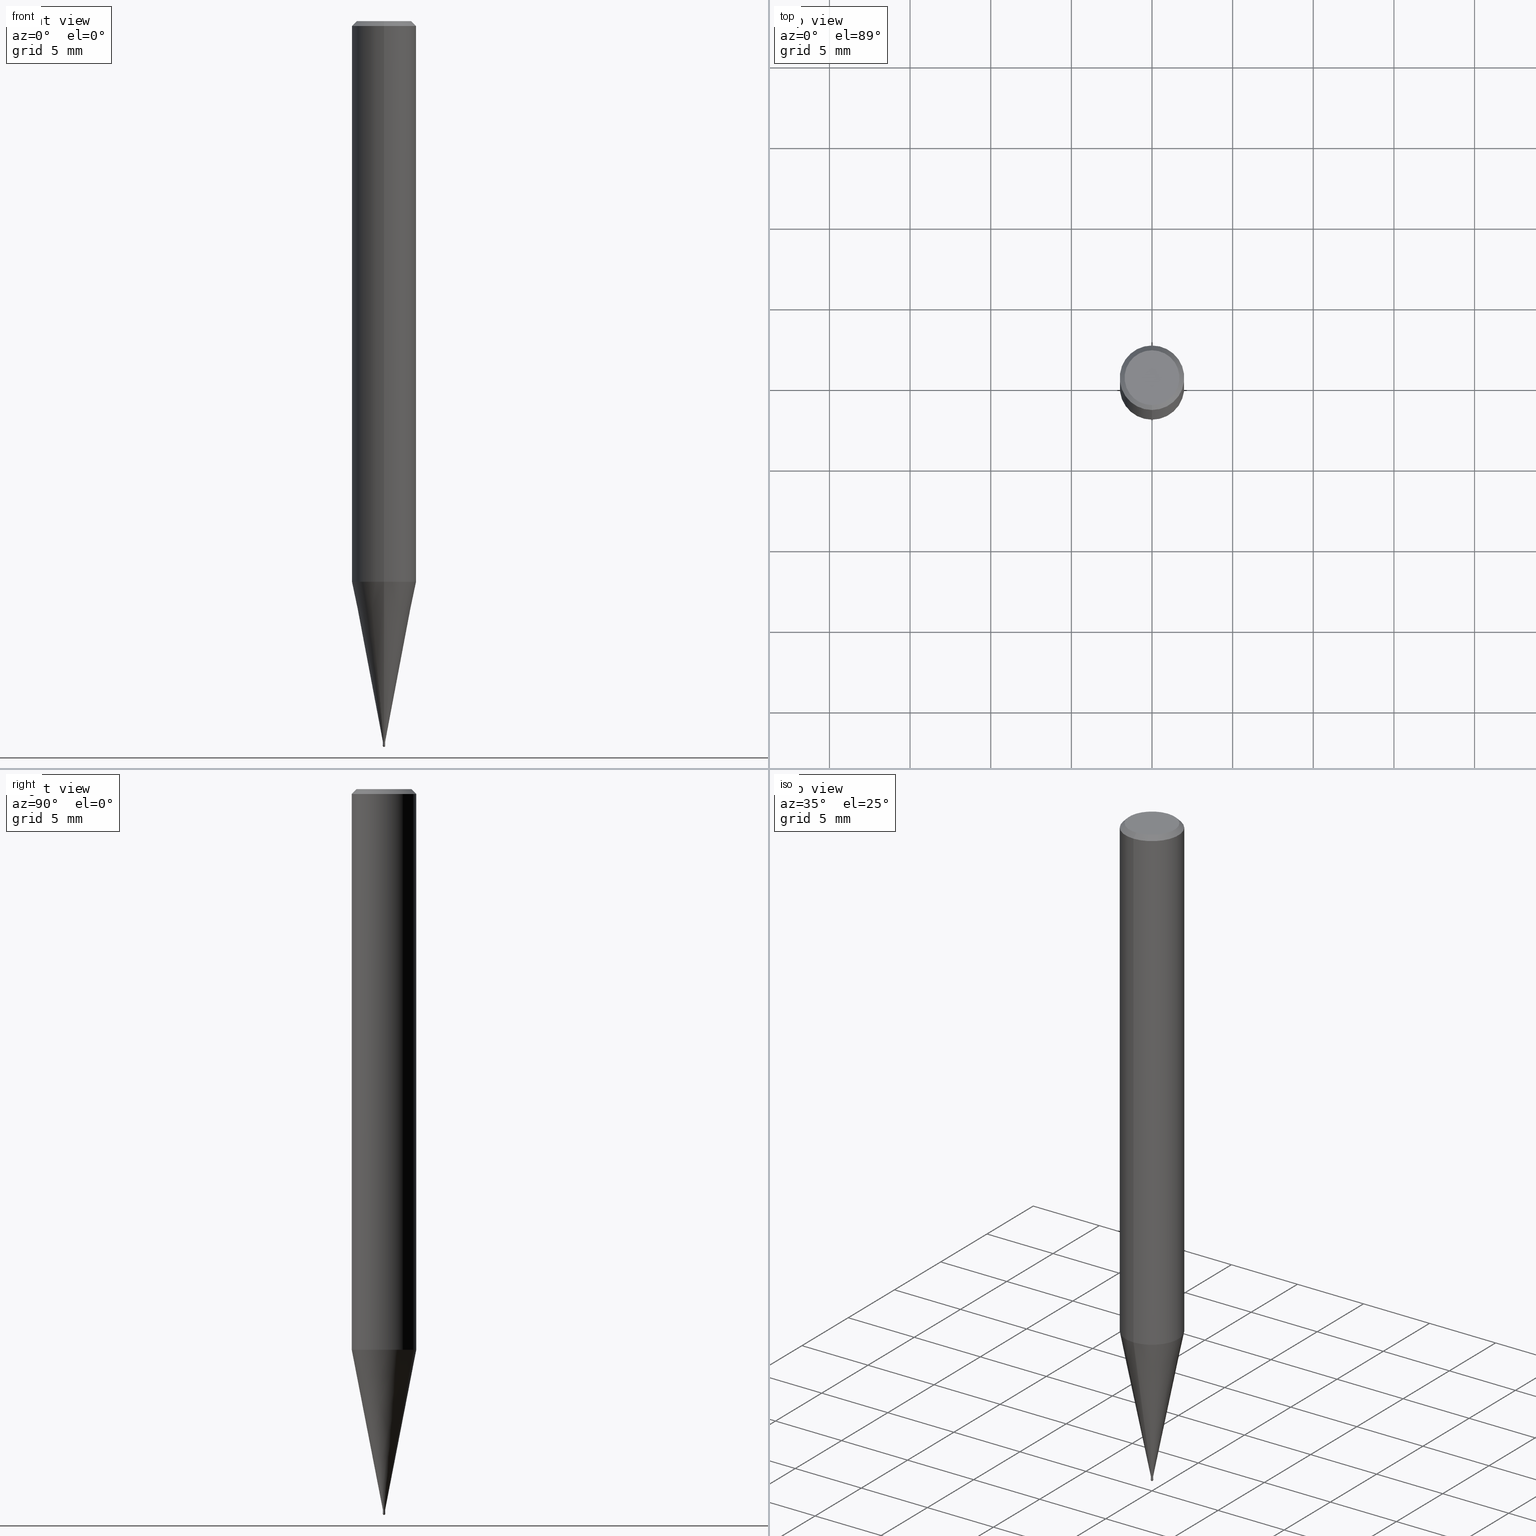
[diagram: canonical four-view strip — front | top / right | iso, engineering-drawing reading convention]
A machine part, canonical four-view strip (front | top / right | iso — engineering-drawing reading convention). The complete STEP part file that produces these views, byte-faithful:
ISO-10303-21;
HEADER;
FILE_DESCRIPTION(('no description'),'unknown implementation level');
FILE_NAME('HSLB20015-003-Huellk.stp','  ',('CIMSOURCE GmbH'),('CADClick - KiM GmbH - www.kimweb.de'),'unknown preprocess','ACIS','unknown authorization');
FILE_SCHEMA(('automotive_design'));
ENDSEC;
DATA;
#1=MECHANICAL_DESIGN_GEOMETRIC_PRESENTATION_REPRESENTATION(' ',(#14,#15,#16,#17,#18,#19,#20,#21,#22,#23,#24,#25,#26,#27,#28,#29,#30,#31,#32,#33,#34,#35,#36,#37,#38,#39,#40,#41,#42,#43,#44,#45,#46,#47,#48,#49,#50,#51,#52,#53,#54,#55,#56,#57,#58,#59,#60,#61,#62,#63,#64,#65,#66,#67,#68,#69,#70,#71,#72,#73,#74),#10);
#2=PRODUCT_DEFINITION_CONTEXT('',#75,'design');
#3=APPLICATION_PROTOCOL_DEFINITION('INTERNATIONAL STANDARD','automotive_design',1994,#75);
#4=PRODUCT_CATEGORY_RELATIONSHIP('NONE','NONE',#76,#77);
#5=SHAPE_DEFINITION_REPRESENTATION(#78,#79);
#6=PRODUCT_DEFINITION_CONTEXT('',#80,'design');
#7=APPLICATION_PROTOCOL_DEFINITION('INTERNATIONAL STANDARD','automotive_design',1994,#80);
#8=PRODUCT_CATEGORY_RELATIONSHIP('NONE','NONE',#81,#82);
#9=SHAPE_DEFINITION_REPRESENTATION(#83,#84);
#10= (GEOMETRIC_REPRESENTATION_CONTEXT(3)GLOBAL_UNCERTAINTY_ASSIGNED_CONTEXT((#87))GLOBAL_UNIT_ASSIGNED_CONTEXT((#89,#90,#91))REPRESENTATION_CONTEXT('NONE','WORKSPACE'));
#14=STYLED_ITEM('',(#93),#94);
#15=STYLED_ITEM('',(#95),#96);
#16=STYLED_ITEM('',(#97),#98);
#17=STYLED_ITEM('',(#99),#100);
#18=STYLED_ITEM('',(#101),#102);
#19=STYLED_ITEM('',(#103),#104);
#20=STYLED_ITEM('',(#105),#106);
#21=STYLED_ITEM('',(#107),#108);
#22=STYLED_ITEM('',(#109),#110);
#23=STYLED_ITEM('',(#111),#112);
#24=STYLED_ITEM('',(#113),#114);
#25=STYLED_ITEM('',(#115),#116);
#26=STYLED_ITEM('',(#117),#118);
#27=STYLED_ITEM('',(#119),#120);
#28=STYLED_ITEM('',(#121),#122);
#29=STYLED_ITEM('',(#123),#124);
#30=STYLED_ITEM('',(#125),#126);
#31=STYLED_ITEM('',(#127),#128);
#32=STYLED_ITEM('',(#129),#130);
#33=STYLED_ITEM('',(#131),#132);
#34=STYLED_ITEM('',(#133),#134);
#35=STYLED_ITEM('',(#135),#136);
#36=STYLED_ITEM('',(#137),#138);
#37=STYLED_ITEM('',(#139),#140);
#38=STYLED_ITEM('',(#141),#142);
#39=STYLED_ITEM('',(#143),#144);
#40=STYLED_ITEM('',(#145),#146);
#41=STYLED_ITEM('',(#147),#148);
#42=STYLED_ITEM('',(#149),#150);
#43=STYLED_ITEM('',(#151),#152);
#44=STYLED_ITEM('',(#153),#154);
#45=STYLED_ITEM('',(#155),#156);
#46=STYLED_ITEM('',(#157),#158);
#47=STYLED_ITEM('',(#159),#160);
#48=STYLED_ITEM('',(#161),#162);
#49=STYLED_ITEM('',(#163),#164);
#50=STYLED_ITEM('',(#165),#166);
#51=STYLED_ITEM('',(#167),#168);
#52=STYLED_ITEM('',(#169),#170);
#53=STYLED_ITEM('',(#171),#172);
#54=STYLED_ITEM('',(#173),#174);
#55=STYLED_ITEM('',(#175),#176);
#56=STYLED_ITEM('',(#177),#178);
#57=STYLED_ITEM('',(#179),#180);
#58=STYLED_ITEM('',(#181),#182);
#59=STYLED_ITEM('',(#183),#184);
#60=STYLED_ITEM('',(#185),#186);
#61=STYLED_ITEM('',(#187),#188);
#62=STYLED_ITEM('',(#189),#190);
#63=STYLED_ITEM('',(#191),#192);
#64=STYLED_ITEM('',(#193),#194);
#65=STYLED_ITEM('',(#195),#196);
#66=STYLED_ITEM('',(#197),#198);
#67=STYLED_ITEM('',(#199),#200);
#68=STYLED_ITEM('',(#201),#202);
#69=STYLED_ITEM('',(#203),#204);
#70=STYLED_ITEM('',(#205),#206);
#71=STYLED_ITEM('',(#207),#208);
#72=STYLED_ITEM('',(#209),#210);
#73=STYLED_ITEM('',(#211),#212);
#74=STYLED_ITEM('',(#213),#214);
#75=APPLICATION_CONTEXT(' ');
#76=PRODUCT_CATEGORY('part','NONE');
#77=PRODUCT_RELATED_PRODUCT_CATEGORY('detail',' ',(#215));
#78=PRODUCT_DEFINITION_SHAPE('NONE','NONE',#216);
#79=ADVANCED_BREP_SHAPE_REPRESENTATION('1',(#136,#217),#10);
#80=APPLICATION_CONTEXT(' ');
#81=PRODUCT_CATEGORY('part','NONE');
#82=PRODUCT_RELATED_PRODUCT_CATEGORY('detail',' ',(#218));
#83=PRODUCT_DEFINITION_SHAPE('NONE','NONE',#219);
#84=ADVANCED_BREP_SHAPE_REPRESENTATION('2',(#116,#220),#10);
#87=UNCERTAINTY_MEASURE_WITH_UNIT(LENGTH_MEASURE(1.0E-006),#89,'','');
#89= (CONVERSION_BASED_UNIT('MILLIMETRE',#223)LENGTH_UNIT()NAMED_UNIT(#226));
#90= (NAMED_UNIT(#228)PLANE_ANGLE_UNIT()SI_UNIT($,.RADIAN.));
#91= (NAMED_UNIT(#228)SOLID_ANGLE_UNIT()SI_UNIT($,.STERADIAN.));
#93=PRESENTATION_STYLE_ASSIGNMENT((#234));
#94=VERTEX_POINT('',#235);
#95=PRESENTATION_STYLE_ASSIGNMENT((#236));
#96=ADVANCED_FACE('',(#237),#238,.T.);
#97=PRESENTATION_STYLE_ASSIGNMENT((#239));
#98=EDGE_CURVE('',#174,#142,#240,.T.);
#99=PRESENTATION_STYLE_ASSIGNMENT((#241));
#100=VERTEX_POINT('',#242);
#101=PRESENTATION_STYLE_ASSIGNMENT((#243));
#102=EDGE_CURVE('',#140,#210,#244,.T.);
#103=PRESENTATION_STYLE_ASSIGNMENT((#245));
#104=EDGE_CURVE('',#180,#108,#246,.T.);
#105=PRESENTATION_STYLE_ASSIGNMENT((#247));
#106=EDGE_CURVE('',#170,#146,#248,.T.);
#107=PRESENTATION_STYLE_ASSIGNMENT((#249));
#108=VERTEX_POINT('',#250);
#109=PRESENTATION_STYLE_ASSIGNMENT((#251));
#110=EDGE_CURVE('',#156,#140,#252,.T.);
#111=PRESENTATION_STYLE_ASSIGNMENT((#253));
#112=ADVANCED_FACE('',(#254),#255,.T.);
#113=PRESENTATION_STYLE_ASSIGNMENT((#256));
#114=EDGE_CURVE('',#118,#134,#257,.T.);
#115=PRESENTATION_STYLE_ASSIGNMENT((#258));
#116=MANIFOLD_SOLID_BREP('2',#259);
#117=PRESENTATION_STYLE_ASSIGNMENT((#260));
#118=VERTEX_POINT('',#261);
#119=PRESENTATION_STYLE_ASSIGNMENT((#262));
#120=EDGE_CURVE('',#100,#166,#263,.T.);
#121=PRESENTATION_STYLE_ASSIGNMENT((#264));
#122=ADVANCED_FACE('',(#265),#266,.T.);
#123=PRESENTATION_STYLE_ASSIGNMENT((#267));
#124=EDGE_CURVE('',#100,#134,#268,.T.);
#125=PRESENTATION_STYLE_ASSIGNMENT((#269));
#126=EDGE_CURVE('',#166,#94,#270,.T.);
#127=PRESENTATION_STYLE_ASSIGNMENT((#271));
#128=VERTEX_POINT('',#272);
#129=PRESENTATION_STYLE_ASSIGNMENT((#273));
#130=ADVANCED_FACE('',(#274),#275,.T.);
#131=PRESENTATION_STYLE_ASSIGNMENT((#276));
#132=EDGE_CURVE('',#166,#118,#277,.T.);
#133=PRESENTATION_STYLE_ASSIGNMENT((#278));
#134=VERTEX_POINT('',#279);
#135=PRESENTATION_STYLE_ASSIGNMENT((#280));
#136=MANIFOLD_SOLID_BREP('1',#281);
#137=PRESENTATION_STYLE_ASSIGNMENT((#282));
#138=EDGE_CURVE('',#170,#146,#283,.T.);
#139=PRESENTATION_STYLE_ASSIGNMENT((#284));
#140=VERTEX_POINT('',#285);
#141=PRESENTATION_STYLE_ASSIGNMENT((#286));
#142=VERTEX_POINT('',#287);
#143=PRESENTATION_STYLE_ASSIGNMENT((#288));
#144=EDGE_CURVE('',#210,#140,#289,.T.);
#145=PRESENTATION_STYLE_ASSIGNMENT((#290));
#146=VERTEX_POINT('',#291);
#147=PRESENTATION_STYLE_ASSIGNMENT((#292));
#148=EDGE_CURVE('',#176,#118,#293,.T.);
#149=PRESENTATION_STYLE_ASSIGNMENT((#294));
#150=EDGE_CURVE('',#134,#100,#295,.T.);
#151=PRESENTATION_STYLE_ASSIGNMENT((#296));
#152=ADVANCED_FACE('',(#297),#298,.T.);
#153=PRESENTATION_STYLE_ASSIGNMENT((#299));
#154=EDGE_CURVE('',#128,#180,#300,.T.);
#155=PRESENTATION_STYLE_ASSIGNMENT((#301));
#156=VERTEX_POINT('',#302);
#157=PRESENTATION_STYLE_ASSIGNMENT((#303));
#158=EDGE_CURVE('',#142,#174,#304,.T.);
#159=PRESENTATION_STYLE_ASSIGNMENT((#305));
#160=ADVANCED_FACE('',(#306,#307),#308,.T.);
#161=PRESENTATION_STYLE_ASSIGNMENT((#309));
#162=EDGE_CURVE('',#156,#128,#310,.T.);
#163=PRESENTATION_STYLE_ASSIGNMENT((#311));
#164=ADVANCED_FACE('',(#312),#313,.T.);
#165=PRESENTATION_STYLE_ASSIGNMENT((#314));
#166=VERTEX_POINT('',#315);
#167=PRESENTATION_STYLE_ASSIGNMENT((#316));
#168=ADVANCED_FACE('',(#317),#318,.T.);
#169=PRESENTATION_STYLE_ASSIGNMENT((#319));
#170=VERTEX_POINT('',#320);
#171=PRESENTATION_STYLE_ASSIGNMENT((#321));
#172=ADVANCED_FACE('',(#322),#323,.T.);
#173=PRESENTATION_STYLE_ASSIGNMENT((#324));
#174=VERTEX_POINT('',#325);
#175=PRESENTATION_STYLE_ASSIGNMENT((#326));
#176=VERTEX_POINT('',#327);
#177=PRESENTATION_STYLE_ASSIGNMENT((#328));
#178=EDGE_CURVE('',#128,#156,#329,.T.);
#179=PRESENTATION_STYLE_ASSIGNMENT((#330));
#180=VERTEX_POINT('',#331);
#181=PRESENTATION_STYLE_ASSIGNMENT((#332));
#182=ADVANCED_FACE('',(#333),#334,.T.);
#183=PRESENTATION_STYLE_ASSIGNMENT((#335));
#184=EDGE_CURVE('',#94,#176,#336,.T.);
#185=PRESENTATION_STYLE_ASSIGNMENT((#337));
#186=ADVANCED_FACE('',(#338),#339,.T.);
#187=PRESENTATION_STYLE_ASSIGNMENT((#340));
#188=ADVANCED_FACE('',(#341),#342,.T.);
#189=PRESENTATION_STYLE_ASSIGNMENT((#343));
#190=ADVANCED_FACE('',(#344),#345,.T.);
#191=PRESENTATION_STYLE_ASSIGNMENT((#346));
#192=ADVANCED_FACE('',(#347),#348,.T.);
#193=PRESENTATION_STYLE_ASSIGNMENT((#349));
#194=EDGE_CURVE('',#176,#94,#350,.T.);
#195=PRESENTATION_STYLE_ASSIGNMENT((#351));
#196=EDGE_CURVE('',#174,#146,#352,.T.);
#197=PRESENTATION_STYLE_ASSIGNMENT((#353));
#198=EDGE_CURVE('',#108,#156,#354,.T.);
#199=PRESENTATION_STYLE_ASSIGNMENT((#355));
#200=EDGE_CURVE('',#108,#180,#356,.T.);
#201=PRESENTATION_STYLE_ASSIGNMENT((#357));
#202=ADVANCED_FACE('',(#358),#359,.T.);
#203=PRESENTATION_STYLE_ASSIGNMENT((#360));
#204=EDGE_CURVE('',#170,#142,#361,.T.);
#205=PRESENTATION_STYLE_ASSIGNMENT((#362));
#206=ADVANCED_FACE('',(#363),#364,.T.);
#207=PRESENTATION_STYLE_ASSIGNMENT((#365));
#208=EDGE_CURVE('',#146,#170,#366,.T.);
#209=PRESENTATION_STYLE_ASSIGNMENT((#367));
#210=VERTEX_POINT('',#368);
#211=PRESENTATION_STYLE_ASSIGNMENT((#369));
#212=EDGE_CURVE('',#210,#128,#370,.T.);
#213=PRESENTATION_STYLE_ASSIGNMENT((#371));
#214=EDGE_CURVE('',#118,#166,#372,.T.);
#215=PRODUCT('1','1','PART-1-DESC',(#373));
#216=PRODUCT_DEFINITION('NONE','NONE',#374,#2);
#217=AXIS2_PLACEMENT_3D('',#375,#376,#377);
#218=PRODUCT('2','2','PART-2-DESC',(#378));
#219=PRODUCT_DEFINITION('NONE','NONE',#379,#6);
#220=AXIS2_PLACEMENT_3D('',#380,#381,#382);
#223=LENGTH_MEASURE_WITH_UNIT(LENGTH_MEASURE(1.0),#383);
#226=DIMENSIONAL_EXPONENTS(1.0,0.0,0.0,0.0,0.0,0.0,0.0);
#228=DIMENSIONAL_EXPONENTS(0.0,0.0,0.0,0.0,0.0,0.0,0.0);
#234=POINT_STYLE(' ',#384,POSITIVE_LENGTH_MEASURE(1.0E-006),#385);
#235=CARTESIAN_POINT('',(0.0,0.06745,-44.88));
#236=SURFACE_STYLE_USAGE(.BOTH.,#386);
#237=FACE_OUTER_BOUND('',#387,.T.);
#238=PLANE('',#388);
#239=CURVE_STYLE('',#389,POSITIVE_LENGTH_MEASURE(1.0E-006),#390);
#240=CIRCLE('',#391,0.0749);
#241=POINT_STYLE(' ',#392,POSITIVE_LENGTH_MEASURE(1.0E-006),#393);
#242=CARTESIAN_POINT('',(0.0,1.99995,-34.758));
#243=CURVE_STYLE('',#394,POSITIVE_LENGTH_MEASURE(1.0E-006),#395);
#244=CIRCLE('',#396,2.0);
#245=CURVE_STYLE('',#397,POSITIVE_LENGTH_MEASURE(1.0E-006),#398);
#246=CIRCLE('',#399,1.7);
#247=CURVE_STYLE('',#400,POSITIVE_LENGTH_MEASURE(1.0E-006),#401);
#248=CIRCLE('',#402,0.075);
#249=POINT_STYLE(' ',#403,POSITIVE_LENGTH_MEASURE(1.0E-006),#404);
#250=CARTESIAN_POINT('',(0.0,1.7,0.0));
#251=CURVE_STYLE('',#405,POSITIVE_LENGTH_MEASURE(1.0E-006),#406);
#252=LINE('',#407,#408);
#253=SURFACE_STYLE_USAGE(.BOTH.,#409);
#254=FACE_OUTER_BOUND('',#410,.T.);
#255=CYLINDRICAL_SURFACE('',#411,2.0);
#256=CURVE_STYLE('',#412,POSITIVE_LENGTH_MEASURE(1.0E-006),#413);
#257=LINE('',#414,#415);
#258=SURFACE_STYLE_USAGE(.BOTH.,#416);
#259=CLOSED_SHELL('',(#202,#188,#168,#122,#152));
#260=POINT_STYLE(' ',#417,POSITIVE_LENGTH_MEASURE(1.0E-006),#418);
#261=CARTESIAN_POINT('',(8.25996985653193E-018,-0.06745,-44.7));
#262=CURVE_STYLE('',#419,POSITIVE_LENGTH_MEASURE(1.0E-006),#420);
#263=LINE('',#421,#422);
#264=SURFACE_STYLE_USAGE(.BOTH.,#423);
#265=FACE_OUTER_BOUND('',#424,.T.);
#266=CONICAL_SURFACE('',#425,0.07495,0.00222221856425416);
#267=CURVE_STYLE('',#426,POSITIVE_LENGTH_MEASURE(1.0E-006),#427);
#268=CIRCLE('',#428,1.99995);
#269=CURVE_STYLE('',#429,POSITIVE_LENGTH_MEASURE(1.0E-006),#430);
#270=LINE('',#431,#432);
#271=POINT_STYLE(' ',#433,POSITIVE_LENGTH_MEASURE(1.0E-006),#434);
#272=CARTESIAN_POINT('',(2.44921270764475E-016,-2.0,-0.299999999999997));
#273=SURFACE_STYLE_USAGE(.BOTH.,#435);
#274=FACE_OUTER_BOUND('',#436,.T.);
#275=CONICAL_SURFACE('',#437,1.85,0.785398163397453);
#276=CURVE_STYLE('',#438,POSITIVE_LENGTH_MEASURE(1.0E-006),#439);
#277=CIRCLE('',#440,0.06745);
#278=POINT_STYLE(' ',#441,POSITIVE_LENGTH_MEASURE(1.0E-006),#442);
#279=CARTESIAN_POINT('',(2.44915147732706E-016,-1.99995,-34.758));
#280=SURFACE_STYLE_USAGE(.BOTH.,#443);
#281=CLOSED_SHELL('',(#190,#182,#112,#130,#160,#206,#172,#164,#192,#186,#96));
#282=CURVE_STYLE('',#444,POSITIVE_LENGTH_MEASURE(1.0E-006),#445);
#283=CIRCLE('',#446,0.075);
#284=POINT_STYLE(' ',#447,POSITIVE_LENGTH_MEASURE(1.0E-006),#448);
#285=CARTESIAN_POINT('',(0.0,2.0,-34.758));
#286=POINT_STYLE(' ',#449,POSITIVE_LENGTH_MEASURE(1.0E-006),#450);
#287=CARTESIAN_POINT('',(9.1723015901296E-018,-0.0749,-44.88));
#288=CURVE_STYLE('',#451,POSITIVE_LENGTH_MEASURE(1.0E-006),#452);
#289=CIRCLE('',#453,2.0);
#290=POINT_STYLE(' ',#454,POSITIVE_LENGTH_MEASURE(1.0E-006),#455);
#291=CARTESIAN_POINT('',(0.0,0.075,-44.925));
#292=CURVE_STYLE('',#456,POSITIVE_LENGTH_MEASURE(1.0E-006),#457);
#293=LINE('',#458,#459);
#294=CURVE_STYLE('',#460,POSITIVE_LENGTH_MEASURE(1.0E-006),#461);
#295=CIRCLE('',#462,1.99995);
#296=SURFACE_STYLE_USAGE(.BOTH.,#463);
#297=FACE_OUTER_BOUND('',#464,.T.);
#298=SPHERICAL_SURFACE('',#465,0.075);
#299=CURVE_STYLE('',#466,POSITIVE_LENGTH_MEASURE(1.0E-006),#467);
#300=LINE('',#468,#469);
#301=POINT_STYLE(' ',#470,POSITIVE_LENGTH_MEASURE(1.0E-006),#471);
#302=CARTESIAN_POINT('',(0.0,2.0,-0.299999999999997));
#303=CURVE_STYLE('',#472,POSITIVE_LENGTH_MEASURE(1.0E-006),#473);
#304=CIRCLE('',#474,0.0749);
#305=SURFACE_STYLE_USAGE(.BOTH.,#475);
#306=FACE_OUTER_BOUND('',#476,.T.);
#307=FACE_BOUND('',#477,.T.);
#308=PLANE('',#478);
#309=CURVE_STYLE('',#479,POSITIVE_LENGTH_MEASURE(1.0E-006),#480);
#310=CIRCLE('',#481,2.0);
#311=SURFACE_STYLE_USAGE(.BOTH.,#482);
#312=FACE_OUTER_BOUND('',#483,.T.);
#313=CYLINDRICAL_SURFACE('',#484,2.0);
#314=POINT_STYLE(' ',#485,POSITIVE_LENGTH_MEASURE(1.0E-006),#486);
#315=CARTESIAN_POINT('',(0.0,0.06745,-44.7));
#316=SURFACE_STYLE_USAGE(.BOTH.,#487);
#317=FACE_OUTER_BOUND('',#488,.T.);
#318=PLANE('',#489);
#319=POINT_STYLE(' ',#490,POSITIVE_LENGTH_MEASURE(1.0E-006),#491);
#320=CARTESIAN_POINT('',(9.18454765366782E-018,-0.0749999999999999,-44.925));
#321=SURFACE_STYLE_USAGE(.BOTH.,#492);
#322=FACE_OUTER_BOUND('',#493,.T.);
#323=CONICAL_SURFACE('',#494,1.85,0.785398163397453);
#324=POINT_STYLE(' ',#495,POSITIVE_LENGTH_MEASURE(1.0E-006),#496);
#325=CARTESIAN_POINT('',(0.0,0.0749,-44.88));
#326=POINT_STYLE(' ',#497,POSITIVE_LENGTH_MEASURE(1.0E-006),#498);
#327=CARTESIAN_POINT('',(8.25996985653193E-018,-0.06745,-44.88));
#328=CURVE_STYLE('',#499,POSITIVE_LENGTH_MEASURE(1.0E-006),#500);
#329=CIRCLE('',#501,2.0);
#330=POINT_STYLE(' ',#502,POSITIVE_LENGTH_MEASURE(1.0E-006),#503);
#331=CARTESIAN_POINT('',(2.08183080149804E-016,-1.7,0.0));
#332=SURFACE_STYLE_USAGE(.BOTH.,#504);
#333=FACE_OUTER_BOUND('',#505,.T.);
#334=CONICAL_SURFACE('',#506,1.0337,0.191983403757332);
#335=CURVE_STYLE('',#507,POSITIVE_LENGTH_MEASURE(1.0E-006),#508);
#336=CIRCLE('',#509,0.06745);
#337=SURFACE_STYLE_USAGE(.BOTH.,#510);
#338=FACE_OUTER_BOUND('',#511,.T.);
#339=CYLINDRICAL_SURFACE('',#512,0.06745);
#340=SURFACE_STYLE_USAGE(.BOTH.,#513);
#341=FACE_OUTER_BOUND('',#514,.T.);
#342=CONICAL_SURFACE('',#515,0.07495,0.00222221856425416);
#343=SURFACE_STYLE_USAGE(.BOTH.,#516);
#344=FACE_OUTER_BOUND('',#517,.T.);
#345=CYLINDRICAL_SURFACE('',#518,0.06745);
#346=SURFACE_STYLE_USAGE(.BOTH.,#519);
#347=FACE_OUTER_BOUND('',#520,.T.);
#348=CONICAL_SURFACE('',#521,1.0337,0.191983403757332);
#349=CURVE_STYLE('',#522,POSITIVE_LENGTH_MEASURE(1.0E-006),#523);
#350=CIRCLE('',#524,0.06745);
#351=CURVE_STYLE('',#525,POSITIVE_LENGTH_MEASURE(1.0E-006),#526);
#352=LINE('',#527,#528);
#353=CURVE_STYLE('',#529,POSITIVE_LENGTH_MEASURE(1.0E-006),#530);
#354=LINE('',#531,#532);
#355=CURVE_STYLE('',#533,POSITIVE_LENGTH_MEASURE(1.0E-006),#534);
#356=CIRCLE('',#535,1.7);
#357=SURFACE_STYLE_USAGE(.BOTH.,#536);
#358=FACE_OUTER_BOUND('',#537,.T.);
#359=SPHERICAL_SURFACE('',#538,0.075);
#360=CURVE_STYLE('',#539,POSITIVE_LENGTH_MEASURE(1.0E-006),#540);
#361=LINE('',#541,#542);
#362=SURFACE_STYLE_USAGE(.BOTH.,#543);
#363=FACE_OUTER_BOUND('',#544,.T.);
#364=PLANE('',#545);
#365=CURVE_STYLE('',#546,POSITIVE_LENGTH_MEASURE(1.0E-006),#547);
#366=CIRCLE('',#548,0.075);
#367=POINT_STYLE(' ',#549,POSITIVE_LENGTH_MEASURE(1.0E-006),#550);
#368=CARTESIAN_POINT('',(2.44921270764475E-016,-2.0,-34.758));
#369=CURVE_STYLE('',#551,POSITIVE_LENGTH_MEASURE(1.0E-006),#552);
#370=LINE('',#553,#554);
#371=CURVE_STYLE('',#555,POSITIVE_LENGTH_MEASURE(1.0E-006),#556);
#372=CIRCLE('',#557,0.06745);
#373=PRODUCT_CONTEXT('',#75,'mechanical');
#374=PRODUCT_DEFINITION_FORMATION_WITH_SPECIFIED_SOURCE(' ','NONE',#215,.NOT_KNOWN.);
#375=CARTESIAN_POINT('',(0.0,0.0,0.0));
#376=DIRECTION('',(0.0,0.0,1.0));
#377=DIRECTION('',(1.0,0.0,0.0));
#378=PRODUCT_CONTEXT('',#80,'mechanical');
#379=PRODUCT_DEFINITION_FORMATION_WITH_SPECIFIED_SOURCE(' ','NONE',#218,.NOT_KNOWN.);
#380=CARTESIAN_POINT('',(0.0,0.0,0.0));
#381=DIRECTION('',(0.0,0.0,1.0));
#382=DIRECTION('',(1.0,0.0,0.0));
#383= (NAMED_UNIT(#226)LENGTH_UNIT()SI_UNIT(.MILLI.,.METRE.));
#384=PRE_DEFINED_MARKER('');
#385=COLOUR_RGB('',0.498039215803146,0.498039215803146,0.498039215803146);
#386=SURFACE_SIDE_STYLE('',(#559));
#387=EDGE_LOOP('',(#560,#561));
#388=AXIS2_PLACEMENT_3D('',#562,#563,#564);
#389=DRAUGHTING_PRE_DEFINED_CURVE_FONT('continuous');
#390=COLOUR_RGB('',0.800000011920929,0.800000011920929,0.800000011920929);
#391=AXIS2_PLACEMENT_3D('',#565,#566,#567);
#392=PRE_DEFINED_MARKER('');
#393=COLOUR_RGB('',0.498039215803146,0.498039215803146,0.498039215803146);
#394=DRAUGHTING_PRE_DEFINED_CURVE_FONT('continuous');
#395=COLOUR_RGB('',0.498039215803146,0.498039215803146,0.498039215803146);
#396=AXIS2_PLACEMENT_3D('',#568,#569,#570);
#397=DRAUGHTING_PRE_DEFINED_CURVE_FONT('continuous');
#398=COLOUR_RGB('',0.498039215803146,0.498039215803146,0.498039215803146);
#399=AXIS2_PLACEMENT_3D('',#571,#572,#573);
#400=DRAUGHTING_PRE_DEFINED_CURVE_FONT('continuous');
#401=COLOUR_RGB('',0.800000011920929,0.800000011920929,0.800000011920929);
#402=AXIS2_PLACEMENT_3D('',#574,#575,#576);
#403=PRE_DEFINED_MARKER('');
#404=COLOUR_RGB('',0.498039215803146,0.498039215803146,0.498039215803146);
#405=DRAUGHTING_PRE_DEFINED_CURVE_FONT('continuous');
#406=COLOUR_RGB('',0.498039215803146,0.498039215803146,0.498039215803146);
#407=CARTESIAN_POINT('',(-2.44921270764475E-016,2.0,-17.529));
#408=VECTOR('',#577,1.0);
#409=SURFACE_SIDE_STYLE('',(#578));
#410=EDGE_LOOP('',(#579,#580,#581,#582));
#411=AXIS2_PLACEMENT_3D('',#583,#584,#585);
#412=DRAUGHTING_PRE_DEFINED_CURVE_FONT('continuous');
#413=COLOUR_RGB('',0.498039215803146,0.498039215803146,0.498039215803146);
#414=CARTESIAN_POINT('',(1.26587558794619E-016,-1.0337,-39.729));
#415=VECTOR('',#586,1.0);
#416=SURFACE_SIDE_STYLE('',(#587));
#417=PRE_DEFINED_MARKER('');
#418=COLOUR_RGB('',0.498039215803146,0.498039215803146,0.498039215803146);
#419=DRAUGHTING_PRE_DEFINED_CURVE_FONT('continuous');
#420=COLOUR_RGB('',0.498039215803146,0.498039215803146,0.498039215803146);
#421=CARTESIAN_POINT('',(-1.26587558794619E-016,1.0337,-39.729));
#422=VECTOR('',#588,1.0);
#423=SURFACE_SIDE_STYLE('',(#589));
#424=EDGE_LOOP('',(#590,#591,#592,#593));
#425=AXIS2_PLACEMENT_3D('',#594,#595,#596);
#426=DRAUGHTING_PRE_DEFINED_CURVE_FONT('continuous');
#427=COLOUR_RGB('',0.498039215803146,0.498039215803146,0.498039215803146);
#428=AXIS2_PLACEMENT_3D('',#597,#598,#599);
#429=DRAUGHTING_PRE_DEFINED_CURVE_FONT('continuous');
#430=COLOUR_RGB('',0.498039215803146,0.498039215803146,0.498039215803146);
#431=CARTESIAN_POINT('',(-8.25996985653193E-018,0.06745,-44.79));
#432=VECTOR('',#600,1.0);
#433=PRE_DEFINED_MARKER('');
#434=COLOUR_RGB('',0.498039215803146,0.498039215803146,0.498039215803146);
#435=SURFACE_SIDE_STYLE('',(#601));
#436=EDGE_LOOP('',(#602,#603,#604,#605));
#437=AXIS2_PLACEMENT_3D('',#606,#607,#608);
#438=DRAUGHTING_PRE_DEFINED_CURVE_FONT('continuous');
#439=COLOUR_RGB('',0.498039215803146,0.498039215803146,0.498039215803146);
#440=AXIS2_PLACEMENT_3D('',#609,#610,#611);
#441=PRE_DEFINED_MARKER('');
#442=COLOUR_RGB('',0.498039215803146,0.498039215803146,0.498039215803146);
#443=SURFACE_SIDE_STYLE('',(#612));
#444=DRAUGHTING_PRE_DEFINED_CURVE_FONT('continuous');
#445=COLOUR_RGB('',0.800000011920929,0.800000011920929,0.800000011920929);
#446=AXIS2_PLACEMENT_3D('',#613,#614,#615);
#447=PRE_DEFINED_MARKER('');
#448=COLOUR_RGB('',0.498039215803146,0.498039215803146,0.498039215803146);
#449=PRE_DEFINED_MARKER('');
#450=COLOUR_RGB('',0.800000011920929,0.800000011920929,0.800000011920929);
#451=DRAUGHTING_PRE_DEFINED_CURVE_FONT('continuous');
#452=COLOUR_RGB('',0.498039215803146,0.498039215803146,0.498039215803146);
#453=AXIS2_PLACEMENT_3D('',#616,#617,#618);
#454=PRE_DEFINED_MARKER('');
#455=COLOUR_RGB('',0.800000011920929,0.800000011920929,0.800000011920929);
#456=DRAUGHTING_PRE_DEFINED_CURVE_FONT('continuous');
#457=COLOUR_RGB('',0.498039215803146,0.498039215803146,0.498039215803146);
#458=CARTESIAN_POINT('',(8.25996985653193E-018,-0.06745,-44.79));
#459=VECTOR('',#619,1.0);
#460=DRAUGHTING_PRE_DEFINED_CURVE_FONT('continuous');
#461=COLOUR_RGB('',0.498039215803146,0.498039215803146,0.498039215803146);
#462=AXIS2_PLACEMENT_3D('',#620,#621,#622);
#463=SURFACE_SIDE_STYLE('',(#623));
#464=EDGE_LOOP('',(#624,#625));
#465=AXIS2_PLACEMENT_3D('',#626,#627,#628);
#466=DRAUGHTING_PRE_DEFINED_CURVE_FONT('continuous');
#467=COLOUR_RGB('',0.498039215803146,0.498039215803146,0.498039215803146);
#468=CARTESIAN_POINT('',(2.2655217545714E-016,-1.85,-0.149999999999999));
#469=VECTOR('',#629,1.0);
#470=PRE_DEFINED_MARKER('');
#471=COLOUR_RGB('',0.498039215803146,0.498039215803146,0.498039215803146);
#472=DRAUGHTING_PRE_DEFINED_CURVE_FONT('continuous');
#473=COLOUR_RGB('',0.800000011920929,0.800000011920929,0.800000011920929);
#474=AXIS2_PLACEMENT_3D('',#630,#631,#632);
#475=SURFACE_SIDE_STYLE('',(#633));
#476=EDGE_LOOP('',(#634,#635));
#477=EDGE_LOOP('',(#636,#637));
#478=AXIS2_PLACEMENT_3D('',#638,#639,#640);
#479=DRAUGHTING_PRE_DEFINED_CURVE_FONT('continuous');
#480=COLOUR_RGB('',0.498039215803146,0.498039215803146,0.498039215803146);
#481=AXIS2_PLACEMENT_3D('',#641,#642,#643);
#482=SURFACE_SIDE_STYLE('',(#644));
#483=EDGE_LOOP('',(#645,#646,#647,#648));
#484=AXIS2_PLACEMENT_3D('',#649,#650,#651);
#485=PRE_DEFINED_MARKER('');
#486=COLOUR_RGB('',0.498039215803146,0.498039215803146,0.498039215803146);
#487=SURFACE_SIDE_STYLE('',(#652));
#488=EDGE_LOOP('',(#653,#654));
#489=AXIS2_PLACEMENT_3D('',#655,#656,#657);
#490=PRE_DEFINED_MARKER('');
#491=COLOUR_RGB('',0.800000011920929,0.800000011920929,0.800000011920929);
#492=SURFACE_SIDE_STYLE('',(#658));
#493=EDGE_LOOP('',(#659,#660,#661,#662));
#494=AXIS2_PLACEMENT_3D('',#663,#664,#665);
#495=PRE_DEFINED_MARKER('');
#496=COLOUR_RGB('',0.800000011920929,0.800000011920929,0.800000011920929);
#497=PRE_DEFINED_MARKER('');
#498=COLOUR_RGB('',0.498039215803146,0.498039215803146,0.498039215803146);
#499=DRAUGHTING_PRE_DEFINED_CURVE_FONT('continuous');
#500=COLOUR_RGB('',0.498039215803146,0.498039215803146,0.498039215803146);
#501=AXIS2_PLACEMENT_3D('',#666,#667,#668);
#502=PRE_DEFINED_MARKER('');
#503=COLOUR_RGB('',0.498039215803146,0.498039215803146,0.498039215803146);
#504=SURFACE_SIDE_STYLE('',(#669));
#505=EDGE_LOOP('',(#670,#671,#672,#673));
#506=AXIS2_PLACEMENT_3D('',#674,#675,#676);
#507=DRAUGHTING_PRE_DEFINED_CURVE_FONT('continuous');
#508=COLOUR_RGB('',0.498039215803146,0.498039215803146,0.498039215803146);
#509=AXIS2_PLACEMENT_3D('',#677,#678,#679);
#510=SURFACE_SIDE_STYLE('',(#680));
#511=EDGE_LOOP('',(#681,#682,#683,#684));
#512=AXIS2_PLACEMENT_3D('',#685,#686,#687);
#513=SURFACE_SIDE_STYLE('',(#688));
#514=EDGE_LOOP('',(#689,#690,#691,#692));
#515=AXIS2_PLACEMENT_3D('',#693,#694,#695);
#516=SURFACE_SIDE_STYLE('',(#696));
#517=EDGE_LOOP('',(#697,#698,#699,#700));
#518=AXIS2_PLACEMENT_3D('',#701,#702,#703);
#519=SURFACE_SIDE_STYLE('',(#704));
#520=EDGE_LOOP('',(#705,#706,#707,#708));
#521=AXIS2_PLACEMENT_3D('',#709,#710,#711);
#522=DRAUGHTING_PRE_DEFINED_CURVE_FONT('continuous');
#523=COLOUR_RGB('',0.498039215803146,0.498039215803146,0.498039215803146);
#524=AXIS2_PLACEMENT_3D('',#712,#713,#714);
#525=DRAUGHTING_PRE_DEFINED_CURVE_FONT('continuous');
#526=COLOUR_RGB('',0.800000011920929,0.800000011920929,0.800000011920929);
#527=CARTESIAN_POINT('',(-9.17842462189872E-018,0.07495,-44.9025));
#528=VECTOR('',#715,1.0);
#529=DRAUGHTING_PRE_DEFINED_CURVE_FONT('continuous');
#530=COLOUR_RGB('',0.498039215803146,0.498039215803146,0.498039215803146);
#531=CARTESIAN_POINT('',(-2.2655217545714E-016,1.85,-0.149999999999999));
#532=VECTOR('',#716,1.0);
#533=DRAUGHTING_PRE_DEFINED_CURVE_FONT('continuous');
#534=COLOUR_RGB('',0.498039215803146,0.498039215803146,0.498039215803146);
#535=AXIS2_PLACEMENT_3D('',#717,#718,#719);
#536=SURFACE_SIDE_STYLE('',(#720));
#537=EDGE_LOOP('',(#721,#722));
#538=AXIS2_PLACEMENT_3D('',#723,#724,#725);
#539=DRAUGHTING_PRE_DEFINED_CURVE_FONT('continuous');
#540=COLOUR_RGB('',0.800000011920929,0.800000011920929,0.800000011920929);
#541=CARTESIAN_POINT('',(9.17842462189871E-018,-0.07495,-44.9025));
#542=VECTOR('',#726,1.0);
#543=SURFACE_SIDE_STYLE('',(#727));
#544=EDGE_LOOP('',(#728,#729));
#545=AXIS2_PLACEMENT_3D('',#730,#731,#732);
#546=DRAUGHTING_PRE_DEFINED_CURVE_FONT('continuous');
#547=COLOUR_RGB('',0.800000011920929,0.800000011920929,0.800000011920929);
#548=AXIS2_PLACEMENT_3D('',#733,#734,#735);
#549=PRE_DEFINED_MARKER('');
#550=COLOUR_RGB('',0.498039215803146,0.498039215803146,0.498039215803146);
#551=DRAUGHTING_PRE_DEFINED_CURVE_FONT('continuous');
#552=COLOUR_RGB('',0.498039215803146,0.498039215803146,0.498039215803146);
#553=CARTESIAN_POINT('',(2.44921270764475E-016,-2.0,-17.529));
#554=VECTOR('',#736,1.0);
#555=DRAUGHTING_PRE_DEFINED_CURVE_FONT('continuous');
#556=COLOUR_RGB('',0.498039215803146,0.498039215803146,0.498039215803146);
#557=AXIS2_PLACEMENT_3D('',#737,#738,#739);
#559=SURFACE_STYLE_FILL_AREA(#740);
#560=ORIENTED_EDGE('',*,*,#184,.T.);
#561=ORIENTED_EDGE('',*,*,#194,.T.);
#562=CARTESIAN_POINT('',(0.0,0.033725,-44.88));
#563=DIRECTION('',(0.0,0.0,-1.0));
#564=DIRECTION('',(0.0,1.0,0.0));
#565=CARTESIAN_POINT('',(0.0,0.0,-44.88));
#566=DIRECTION('',(0.0,0.0,-1.0));
#567=DIRECTION('',(0.0,1.0,0.0));
#568=CARTESIAN_POINT('',(0.0,0.0,-34.758));
#569=DIRECTION('',(0.0,0.0,-1.0));
#570=DIRECTION('',(0.0,1.0,0.0));
#571=CARTESIAN_POINT('',(0.0,0.0,0.0));
#572=DIRECTION('',(0.0,0.0,-1.0));
#573=DIRECTION('',(0.0,1.0,0.0));
#574=CARTESIAN_POINT('',(0.0,0.0,-44.925));
#575=DIRECTION('',(0.0,0.0,-1.0));
#576=DIRECTION('',(0.0,1.0,0.0));
#577=DIRECTION('',(0.0,0.0,-1.0));
#578=SURFACE_STYLE_FILL_AREA(#741);
#579=ORIENTED_EDGE('',*,*,#110,.F.);
#580=ORIENTED_EDGE('',*,*,#162,.T.);
#581=ORIENTED_EDGE('',*,*,#212,.F.);
#582=ORIENTED_EDGE('',*,*,#102,.F.);
#583=CARTESIAN_POINT('',(0.0,0.0,-17.529));
#584=DIRECTION('',(-0.0,-0.0,1.0));
#585=DIRECTION('',(0.0,1.0,0.0));
#586=DIRECTION('',(2.33662525420506E-017,-0.190806233114154,0.981627720373048));
#587=SURFACE_STYLE_FILL_AREA(#742);
#588=DIRECTION('',(2.33662525420506E-017,-0.190806233114154,-0.981627720373048));
#589=SURFACE_STYLE_FILL_AREA(#743);
#590=ORIENTED_EDGE('',*,*,#196,.T.);
#591=ORIENTED_EDGE('',*,*,#106,.F.);
#592=ORIENTED_EDGE('',*,*,#204,.T.);
#593=ORIENTED_EDGE('',*,*,#158,.T.);
#594=CARTESIAN_POINT('',(0.0,0.0,-44.9025));
#595=DIRECTION('',(0.0,-0.0,-1.0));
#596=DIRECTION('',(0.0,1.0,0.0));
#597=CARTESIAN_POINT('',(0.0,0.0,-34.758));
#598=DIRECTION('',(0.0,0.0,-1.0));
#599=DIRECTION('',(0.0,1.0,0.0));
#600=DIRECTION('',(0.0,0.0,-1.0));
#601=SURFACE_STYLE_FILL_AREA(#744);
#602=ORIENTED_EDGE('',*,*,#198,.F.);
#603=ORIENTED_EDGE('',*,*,#200,.T.);
#604=ORIENTED_EDGE('',*,*,#154,.F.);
#605=ORIENTED_EDGE('',*,*,#162,.F.);
#606=CARTESIAN_POINT('',(0.0,0.0,-0.149999999999999));
#607=DIRECTION('',(0.0,-0.0,-1.0));
#608=DIRECTION('',(0.0,1.0,0.0));
#609=CARTESIAN_POINT('',(0.0,0.0,-44.7));
#610=DIRECTION('',(0.0,0.0,-1.0));
#611=DIRECTION('',(0.0,1.0,0.0));
#612=SURFACE_STYLE_FILL_AREA(#745);
#613=CARTESIAN_POINT('',(0.0,0.0,-44.925));
#614=DIRECTION('',(1.0,0.0,1.22460635382233E-016));
#615=DIRECTION('',(-1.22460635382233E-016,0.0,1.0));
#616=CARTESIAN_POINT('',(0.0,0.0,-34.758));
#617=DIRECTION('',(0.0,0.0,-1.0));
#618=DIRECTION('',(0.0,1.0,0.0));
#619=DIRECTION('',(-0.0,-0.0,1.0));
#620=CARTESIAN_POINT('',(0.0,0.0,-34.758));
#621=DIRECTION('',(0.0,0.0,-1.0));
#622=DIRECTION('',(0.0,1.0,0.0));
#623=SURFACE_STYLE_FILL_AREA(#746);
#624=ORIENTED_EDGE('',*,*,#138,.T.);
#625=ORIENTED_EDGE('',*,*,#208,.T.);
#626=CARTESIAN_POINT('',(0.0,0.0,-44.925));
#627=DIRECTION('',(0.0,1.0,0.0));
#628=DIRECTION('',(0.0,0.0,-1.0));
#629=DIRECTION('',(-8.6592745707194E-017,0.707106781186551,0.707106781186544));
#630=CARTESIAN_POINT('',(0.0,0.0,-44.88));
#631=DIRECTION('',(0.0,0.0,-1.0));
#632=DIRECTION('',(0.0,1.0,0.0));
#633=SURFACE_STYLE_FILL_AREA(#747);
#634=ORIENTED_EDGE('',*,*,#102,.T.);
#635=ORIENTED_EDGE('',*,*,#144,.T.);
#636=ORIENTED_EDGE('',*,*,#124,.F.);
#637=ORIENTED_EDGE('',*,*,#150,.F.);
#638=CARTESIAN_POINT('',(0.0,1.0,-34.758));
#639=DIRECTION('',(0.0,0.0,-1.0));
#640=DIRECTION('',(0.0,1.0,0.0));
#641=CARTESIAN_POINT('',(0.0,0.0,-0.299999999999997));
#642=DIRECTION('',(0.0,0.0,-1.0));
#643=DIRECTION('',(0.0,1.0,0.0));
#644=SURFACE_STYLE_FILL_AREA(#748);
#645=ORIENTED_EDGE('',*,*,#110,.T.);
#646=ORIENTED_EDGE('',*,*,#144,.F.);
#647=ORIENTED_EDGE('',*,*,#212,.T.);
#648=ORIENTED_EDGE('',*,*,#178,.T.);
#649=CARTESIAN_POINT('',(0.0,0.0,-17.529));
#650=DIRECTION('',(-0.0,-0.0,1.0));
#651=DIRECTION('',(0.0,1.0,0.0));
#652=SURFACE_STYLE_FILL_AREA(#749);
#653=ORIENTED_EDGE('',*,*,#98,.F.);
#654=ORIENTED_EDGE('',*,*,#158,.F.);
#655=CARTESIAN_POINT('',(0.0,0.03745,-44.88));
#656=DIRECTION('',(-0.0,0.0,1.0));
#657=DIRECTION('',(0.0,-1.0,0.0));
#658=SURFACE_STYLE_FILL_AREA(#750);
#659=ORIENTED_EDGE('',*,*,#198,.T.);
#660=ORIENTED_EDGE('',*,*,#178,.F.);
#661=ORIENTED_EDGE('',*,*,#154,.T.);
#662=ORIENTED_EDGE('',*,*,#104,.T.);
#663=CARTESIAN_POINT('',(0.0,0.0,-0.149999999999999));
#664=DIRECTION('',(0.0,-0.0,-1.0));
#665=DIRECTION('',(0.0,1.0,0.0));
#666=CARTESIAN_POINT('',(0.0,0.0,-0.299999999999997));
#667=DIRECTION('',(0.0,0.0,-1.0));
#668=DIRECTION('',(0.0,1.0,0.0));
#669=SURFACE_STYLE_FILL_AREA(#751);
#670=ORIENTED_EDGE('',*,*,#120,.F.);
#671=ORIENTED_EDGE('',*,*,#124,.T.);
#672=ORIENTED_EDGE('',*,*,#114,.F.);
#673=ORIENTED_EDGE('',*,*,#132,.F.);
#674=CARTESIAN_POINT('',(0.0,0.0,-39.729));
#675=DIRECTION('',(-0.0,-0.0,1.0));
#676=DIRECTION('',(0.0,1.0,0.0));
#677=CARTESIAN_POINT('',(0.0,0.0,-44.88));
#678=DIRECTION('',(0.0,0.0,-1.0));
#679=DIRECTION('',(0.0,1.0,0.0));
#680=SURFACE_STYLE_FILL_AREA(#752);
#681=ORIENTED_EDGE('',*,*,#126,.T.);
#682=ORIENTED_EDGE('',*,*,#194,.F.);
#683=ORIENTED_EDGE('',*,*,#148,.T.);
#684=ORIENTED_EDGE('',*,*,#214,.T.);
#685=CARTESIAN_POINT('',(0.0,0.0,-44.79));
#686=DIRECTION('',(-0.0,-0.0,1.0));
#687=DIRECTION('',(0.0,1.0,0.0));
#688=SURFACE_STYLE_FILL_AREA(#753);
#689=ORIENTED_EDGE('',*,*,#196,.F.);
#690=ORIENTED_EDGE('',*,*,#98,.T.);
#691=ORIENTED_EDGE('',*,*,#204,.F.);
#692=ORIENTED_EDGE('',*,*,#208,.F.);
#693=CARTESIAN_POINT('',(0.0,0.0,-44.9025));
#694=DIRECTION('',(0.0,-0.0,-1.0));
#695=DIRECTION('',(0.0,1.0,0.0));
#696=SURFACE_STYLE_FILL_AREA(#754);
#697=ORIENTED_EDGE('',*,*,#126,.F.);
#698=ORIENTED_EDGE('',*,*,#132,.T.);
#699=ORIENTED_EDGE('',*,*,#148,.F.);
#700=ORIENTED_EDGE('',*,*,#184,.F.);
#701=CARTESIAN_POINT('',(0.0,0.0,-44.79));
#702=DIRECTION('',(-0.0,-0.0,1.0));
#703=DIRECTION('',(0.0,1.0,0.0));
#704=SURFACE_STYLE_FILL_AREA(#755);
#705=ORIENTED_EDGE('',*,*,#120,.T.);
#706=ORIENTED_EDGE('',*,*,#214,.F.);
#707=ORIENTED_EDGE('',*,*,#114,.T.);
#708=ORIENTED_EDGE('',*,*,#150,.T.);
#709=CARTESIAN_POINT('',(0.0,0.0,-39.729));
#710=DIRECTION('',(-0.0,-0.0,1.0));
#711=DIRECTION('',(0.0,1.0,0.0));
#712=CARTESIAN_POINT('',(0.0,0.0,-44.88));
#713=DIRECTION('',(0.0,0.0,-1.0));
#714=DIRECTION('',(0.0,1.0,0.0));
#715=DIRECTION('',(-2.72134073358715E-019,0.00222221673527416,-0.999997530873343));
#716=DIRECTION('',(-8.6592745707194E-017,0.707106781186551,-0.707106781186544));
#717=CARTESIAN_POINT('',(0.0,0.0,0.0));
#718=DIRECTION('',(0.0,0.0,-1.0));
#719=DIRECTION('',(0.0,1.0,0.0));
#720=SURFACE_STYLE_FILL_AREA(#756);
#721=ORIENTED_EDGE('',*,*,#138,.F.);
#722=ORIENTED_EDGE('',*,*,#106,.T.);
#723=CARTESIAN_POINT('',(0.0,0.0,-44.925));
#724=DIRECTION('',(0.0,1.0,0.0));
#725=DIRECTION('',(0.0,0.0,-1.0));
#726=DIRECTION('',(-2.72134073358715E-019,0.00222221673527416,0.999997530873343));
#727=SURFACE_STYLE_FILL_AREA(#757);
#728=ORIENTED_EDGE('',*,*,#200,.F.);
#729=ORIENTED_EDGE('',*,*,#104,.F.);
#730=CARTESIAN_POINT('',(0.0,0.85,0.0));
#731=DIRECTION('',(-0.0,0.0,1.0));
#732=DIRECTION('',(0.0,-1.0,0.0));
#733=CARTESIAN_POINT('',(0.0,0.0,-44.925));
#734=DIRECTION('',(0.0,0.0,-1.0));
#735=DIRECTION('',(0.0,1.0,0.0));
#736=DIRECTION('',(-0.0,-0.0,1.0));
#737=CARTESIAN_POINT('',(0.0,0.0,-44.7));
#738=DIRECTION('',(0.0,0.0,-1.0));
#739=DIRECTION('',(0.0,1.0,0.0));
#740=FILL_AREA_STYLE('',(#758));
#741=FILL_AREA_STYLE('',(#759));
#742=FILL_AREA_STYLE('',(#760));
#743=FILL_AREA_STYLE('',(#761));
#744=FILL_AREA_STYLE('',(#762));
#745=FILL_AREA_STYLE('',(#763));
#746=FILL_AREA_STYLE('',(#764));
#747=FILL_AREA_STYLE('',(#765));
#748=FILL_AREA_STYLE('',(#766));
#749=FILL_AREA_STYLE('',(#767));
#750=FILL_AREA_STYLE('',(#768));
#751=FILL_AREA_STYLE('',(#769));
#752=FILL_AREA_STYLE('',(#770));
#753=FILL_AREA_STYLE('',(#771));
#754=FILL_AREA_STYLE('',(#772));
#755=FILL_AREA_STYLE('',(#773));
#756=FILL_AREA_STYLE('',(#774));
#757=FILL_AREA_STYLE('',(#775));
#758=FILL_AREA_STYLE_COLOUR('',#776);
#759=FILL_AREA_STYLE_COLOUR('',#777);
#760=FILL_AREA_STYLE_COLOUR('',#778);
#761=FILL_AREA_STYLE_COLOUR('',#779);
#762=FILL_AREA_STYLE_COLOUR('',#780);
#763=FILL_AREA_STYLE_COLOUR('',#781);
#764=FILL_AREA_STYLE_COLOUR('',#782);
#765=FILL_AREA_STYLE_COLOUR('',#783);
#766=FILL_AREA_STYLE_COLOUR('',#784);
#767=FILL_AREA_STYLE_COLOUR('',#785);
#768=FILL_AREA_STYLE_COLOUR('',#786);
#769=FILL_AREA_STYLE_COLOUR('',#787);
#770=FILL_AREA_STYLE_COLOUR('',#788);
#771=FILL_AREA_STYLE_COLOUR('',#789);
#772=FILL_AREA_STYLE_COLOUR('',#790);
#773=FILL_AREA_STYLE_COLOUR('',#791);
#774=FILL_AREA_STYLE_COLOUR('',#792);
#775=FILL_AREA_STYLE_COLOUR('',#793);
#776=COLOUR_RGB('',0.498039215803146,0.498039215803146,0.498039215803146);
#777=COLOUR_RGB('',0.498039215803146,0.498039215803146,0.498039215803146);
#778=COLOUR_RGB('',0.800000011920929,0.800000011920929,0.800000011920929);
#779=COLOUR_RGB('',0.800000011920929,0.800000011920929,0.800000011920929);
#780=COLOUR_RGB('',0.498039215803146,0.498039215803146,0.498039215803146);
#781=COLOUR_RGB('',0.498039215803146,0.498039215803146,0.498039215803146);
#782=COLOUR_RGB('',0.800000011920929,0.800000011920929,0.800000011920929);
#783=COLOUR_RGB('',0.498039215803146,0.498039215803146,0.498039215803146);
#784=COLOUR_RGB('',0.498039215803146,0.498039215803146,0.498039215803146);
#785=COLOUR_RGB('',0.800000011920929,0.800000011920929,0.800000011920929);
#786=COLOUR_RGB('',0.498039215803146,0.498039215803146,0.498039215803146);
#787=COLOUR_RGB('',0.498039215803146,0.498039215803146,0.498039215803146);
#788=COLOUR_RGB('',0.498039215803146,0.498039215803146,0.498039215803146);
#789=COLOUR_RGB('',0.800000011920929,0.800000011920929,0.800000011920929);
#790=COLOUR_RGB('',0.498039215803146,0.498039215803146,0.498039215803146);
#791=COLOUR_RGB('',0.498039215803146,0.498039215803146,0.498039215803146);
#792=COLOUR_RGB('',0.800000011920929,0.800000011920929,0.800000011920929);
#793=COLOUR_RGB('',0.498039215803146,0.498039215803146,0.498039215803146);
#794=AXIS2_PLACEMENT_3D('PCS',#795,#796,#797);
#795=CARTESIAN_POINT('',(0.0,0.0,0.0));
#796=DIRECTION('',(0.0,0.0,1.0));
#797=DIRECTION('',(1.0,0.0,0.0));
#798=AXIS2_PLACEMENT_3D('CIP',#799,#800,#801);
#799=CARTESIAN_POINT('',(0.0,0.0,-45.0));
#800=DIRECTION('',(0.0,0.0,1.0));
#801=DIRECTION('',(1.0,0.0,0.0));
#802=AXIS2_PLACEMENT_3D('CRP',#803,#804,#805);
#803=CARTESIAN_POINT('',(-0.075,0.0,-45.0));
#804=DIRECTION('',(0.0,0.0,1.0));
#805=DIRECTION('',(1.0,0.0,0.0));
#806=AXIS2_PLACEMENT_3D('MCS',#807,#808,#809);
#807=CARTESIAN_POINT('',(0.0,0.0,-34.758));
#808=DIRECTION('',(0.0,0.0,1.0));
#809=DIRECTION('',(1.0,0.0,0.0));
#810=CONSTRUCTIVE_GEOMETRY_REPRESENTATION_RELATIONSHIP('coordinate systems',$,#79,#811);
#811=CONSTRUCTIVE_GEOMETRY_REPRESENTATION('coordinate systems',(#794,#798,#802,#806),#10);
ENDSEC;
END-ISO-10303-21;
